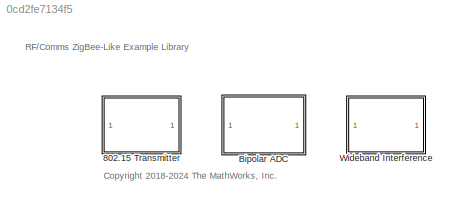
MODEL slx_0cd2fe7134f5
KIND library
CONFIG AbsTol = auto
CONFIG EnableMultiTasking = off
CONFIG FixedStep = auto
CONFIG MaxStep = auto
CONFIG MinStep = auto
CONFIG RelTol = 1e-3
CONFIG SampleTimeConstraint = Unconstrained
CONFIG SolverName = VariableStepAuto
CONFIG StartTime = 0.0
CONFIG StopTime = 10.0
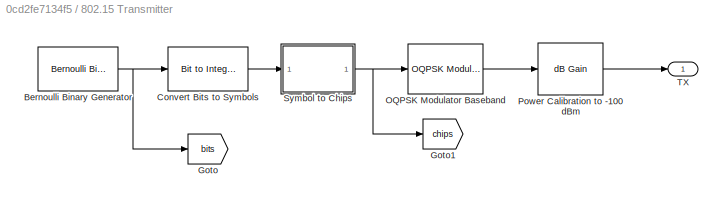
BLOCK [SubSystem] 802.15 Transmitter
BLOCK [Reference] 802.15 Transmitter/Bernoulli Binary Generator  REF=commrandsrc3/Bernoulli Binary
Generator
  SourceBlock = commrandsrc3/Bernoulli Binary\nGenerator
  SourceType = Bernoulli Binary Generator
BLOCK [Reference] 802.15 Transmitter/Convert Bits to Symbols  REF=simulink/Logic and Bit
Operations/Bit to Integer
Converter
  LibrarySourceBlock = commutil2/Bit to Integer\nConverter
  SourceBlock = simulink/Logic and Bit\nOperations/Bit to Integer\nConverter
  SourceType = Bit to Integer Converter
BLOCK [Goto] 802.15 Transmitter/Goto
  GotoTag = bits
  TagVisibility = global
BLOCK [Goto] 802.15 Transmitter/Goto1
  GotoTag = chips
  TagVisibility = global
BLOCK [Reference] 802.15 Transmitter/OQPSK Modulator Baseband  REF=commdigbbndpm3/OQPSK
Modulator
Baseband
  SourceBlock = commdigbbndpm3/OQPSK\nModulator\nBaseband
  SourceType = OQPSK Modulator Baseband
  UserDataPersistent = on
BLOCK [Reference] 802.15 Transmitter/Power Calibration to -100 dBm  REF=dspmathops/dB Gain
  SourceBlock = dspmathops/dB Gain
  SourceType = dB Gain
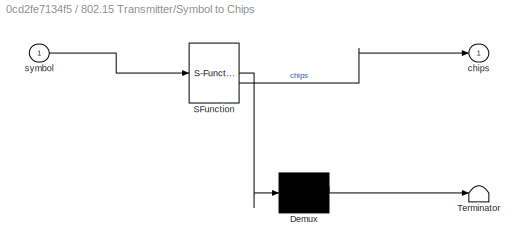
BLOCK [SubSystem] 802.15 Transmitter/Symbol to Chips
  ErrorFcn = Stateflow.Translate.translate
  PermitHierarchicalResolution = ExplicitOnly
  SFBlockType = MATLAB Function
  TreatAsAtomicUnit = on
BLOCK [Demux] 802.15 Transmitter/Symbol to Chips/ Demux 
  Outputs = 1
BLOCK [S-Function] 802.15 Transmitter/Symbol to Chips/ SFunction 
  EnableBusSupport = off
  FunctionName = sf_sfun
  PortCounts = [1 2]
  SFcnIsStateOwnerBlock = off
  SFunctionDeploymentMode = off
  Tag = Stateflow S-Function 2
BLOCK [Terminator] 802.15 Transmitter/Symbol to Chips/ Terminator 
BLOCK [Outport] 802.15 Transmitter/Symbol to Chips/chips
  VectorParamsAs1DForOutWhenUnconnected = off
BLOCK [Inport] 802.15 Transmitter/Symbol to Chips/symbol
BLOCK [Outport] 802.15 Transmitter/TX
  VectorParamsAs1DForOutWhenUnconnected = off
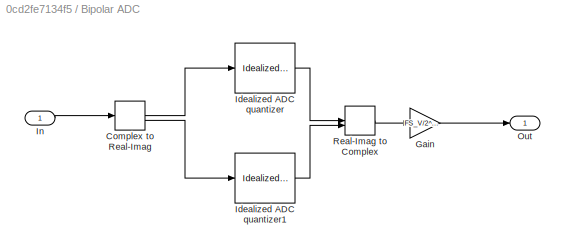
BLOCK [SubSystem] Bipolar ADC
  LibrarySourceBlock = commdemoslib/Bipolar ADC
BLOCK [ComplexToRealImag] Bipolar ADC/Complex to Real-Imag
BLOCK [Gain] Bipolar ADC/Gain
  Gain = FS_V/2^(N-1)
BLOCK [Reference] Bipolar ADC/Idealized ADC quantizer  REF=simulink_extras/Additional
Discrete/Idealized ADC quantizer
  AttributesFormatString = (settings: %<NumberOfConverterBits>-bit converter\nVmin: %<Vmin>, Vmax: %<Vmax>)
  SourceBlock = simulink_extras/Additional\nDiscrete/Idealized ADC quantizer
  SourceType = IdealADC
BLOCK [Reference] Bipolar ADC/Idealized ADC quantizer1  REF=simulink_extras/Additional
Discrete/Idealized ADC quantizer
  AttributesFormatString = (settings: %<NumberOfConverterBits>-bit converter\nVmin: %<Vmin>, Vmax: %<Vmax>)
  SourceBlock = simulink_extras/Additional\nDiscrete/Idealized ADC quantizer
  SourceType = IdealADC
BLOCK [Inport] Bipolar ADC/In
BLOCK [Outport] Bipolar ADC/Out
  VectorParamsAs1DForOutWhenUnconnected = off
BLOCK [RealImagToComplex] Bipolar ADC/Real-Imag to Complex
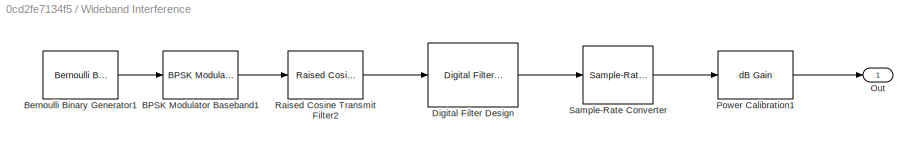
BLOCK [SubSystem] Wideband Interference
BLOCK [Reference] Wideband Interference/BPSK Modulator Baseband1  REF=commdigbbndpm3/BPSK
Modulator
Baseband
  SourceBlock = commdigbbndpm3/BPSK\nModulator\nBaseband
  SourceType = BPSK Modulator Baseband
BLOCK [Reference] Wideband Interference/Bernoulli Binary Generator1  REF=commrandsrc3/Bernoulli Binary
Generator
  SourceBlock = commrandsrc3/Bernoulli Binary\nGenerator
  SourceType = Bernoulli Binary Generator
BLOCK [Reference] Wideband Interference/Digital Filter Design  REF=dspfdesign/Digital
Filter Design
  SourceBlock = dspfdesign/Digital\nFilter Design
  SourceType = Digital Filter Design
  UserDataPersistent = on
BLOCK [Outport] Wideband Interference/Out
  VectorParamsAs1DForOutWhenUnconnected = off
BLOCK [Reference] Wideband Interference/Power Calibration1  REF=dspmathops/dB Gain
  SourceBlock = dspmathops/dB Gain
  SourceType = dB Gain
BLOCK [Reference] Wideband Interference/Raised Cosine Transmit Filter2  REF=commfilt2/Raised Cosine
Transmit Filter
  SourceBlock = commfilt2/Raised Cosine\nTransmit Filter
  SourceType = Raised Cosine Transmit Filter
BLOCK [Reference] Wideband Interference/Sample-Rate Converter  REF=dspsigops/Sample-Rate
Converter
  SourceBlock = dspsigops/Sample-Rate\nConverter
  SourceType = dsp.simulink.SampleRateConverter
ANNOTATION (root): RF/Comms ZigBee-Like Example Library
ANNOTATION (root): <copyright redacted>
NET 802.15 Transmitter/Bernoulli Binary Generator:1 -> 802.15 Transmitter/Convert Bits to Symbols:1, 802.15 Transmitter/Goto:1
LINE 802.15 Transmitter/Convert Bits to Symbols:1 -> 802.15 Transmitter/Symbol to Chips:1
LINE 802.15 Transmitter/OQPSK Modulator Baseband:1 -> 802.15 Transmitter/Power Calibration to -100 dBm:1
LINE 802.15 Transmitter/Power Calibration to -100 dBm:1 -> 802.15 Transmitter/TX:1
NET 802.15 Transmitter/Symbol to Chips:1 -> 802.15 Transmitter/Goto1:1, 802.15 Transmitter/OQPSK Modulator Baseband:1
LINE Bipolar ADC/Complex to Real-Imag:1 -> Bipolar ADC/Idealized ADC quantizer:1
LINE Bipolar ADC/Complex to Real-Imag:2 -> Bipolar ADC/Idealized ADC quantizer1:1
LINE Bipolar ADC/Gain:1 -> Bipolar ADC/Out:1
LINE Bipolar ADC/Idealized ADC quantizer1:1 -> Bipolar ADC/Real-Imag to Complex:2
LINE Bipolar ADC/Idealized ADC quantizer:1 -> Bipolar ADC/Real-Imag to Complex:1
LINE Bipolar ADC/In:1 -> Bipolar ADC/Complex to Real-Imag:1
LINE Bipolar ADC/Real-Imag to Complex:1 -> Bipolar ADC/Gain:1
LINE Wideband Interference/BPSK Modulator Baseband1:1 -> Wideband Interference/Raised Cosine Transmit Filter2:1
LINE Wideband Interference/Bernoulli Binary Generator1:1 -> Wideband Interference/BPSK Modulator Baseband1:1
LINE Wideband Interference/Digital Filter Design:1 -> Wideband Interference/Sample-Rate Converter:1
LINE Wideband Interference/Power Calibration1:1 -> Wideband Interference/Out:1
LINE Wideband Interference/Raised Cosine Transmit Filter2:1 -> Wideband Interference/Digital Filter Design:1
LINE Wideband Interference/Sample-Rate Converter:1 -> Wideband Interference/Power Calibration1:1
note: NET lines group one-source signal fan-out (src -> all destinations, sorted); 1:1 wires keep LINE
CHART 802.15
Transmitter/Symbol to Chips states=1 transitions=1
  STATE_LABEL 'eML_blk_kernel()'
  STATE_LABEL 'SCRIPT:\nfunction chips = sym2chips(symbol)\n  chipMap = ...\n     [1 1 0 1 1 0 0 1 1 1 0 0 0 0 1 1 0 1 0 1 0 0 1 0 0 0 1 0 1 1 1 0;\n      1 1 1 0 1 1 0 1 1 0 0 1 1 1 0 0 0 0 1 1 0 1 0 1 0 0 1 0 0 0 1 0;\n      0 0 1 0 1 1 1 0 1 1 0 1 1 0 0 1 1 1 0 0 0 0 1 1 0 1 0 1 0 0 1 0;\n      0 0 1 0 0 0 1 0 1 1 1 0 1 1 0 1 1 0 0 1 1 1 0 0 0 0 1 1 0 1 0 1;\n      0 1 0 1 0 0 1 0 0 0 1 0 1 1 1 0 1 1 0 1 1 0 0 1 1 1...<+854ch>'
CHART  states=0 transitions=0
